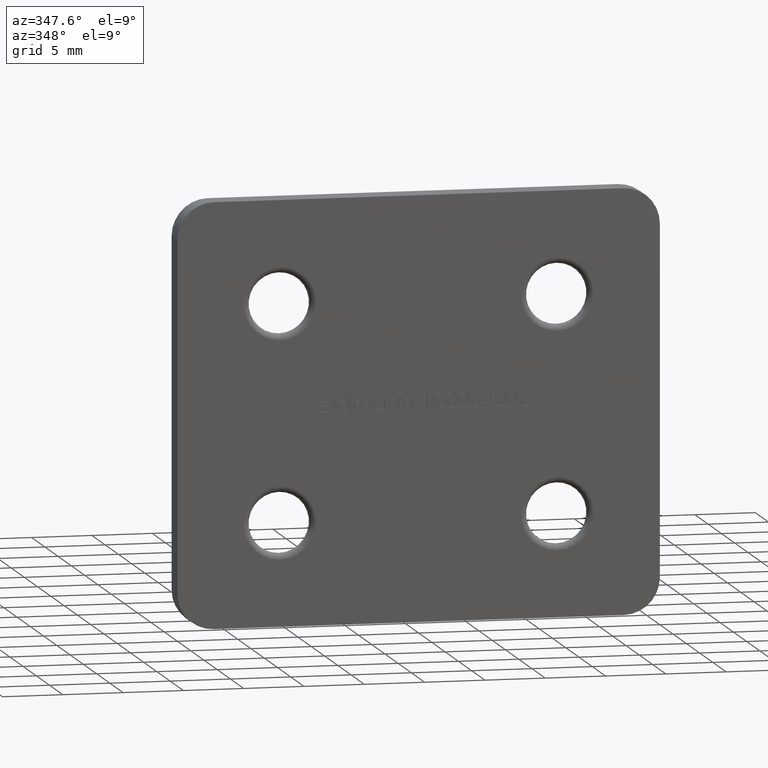
[diagram: clean part render]
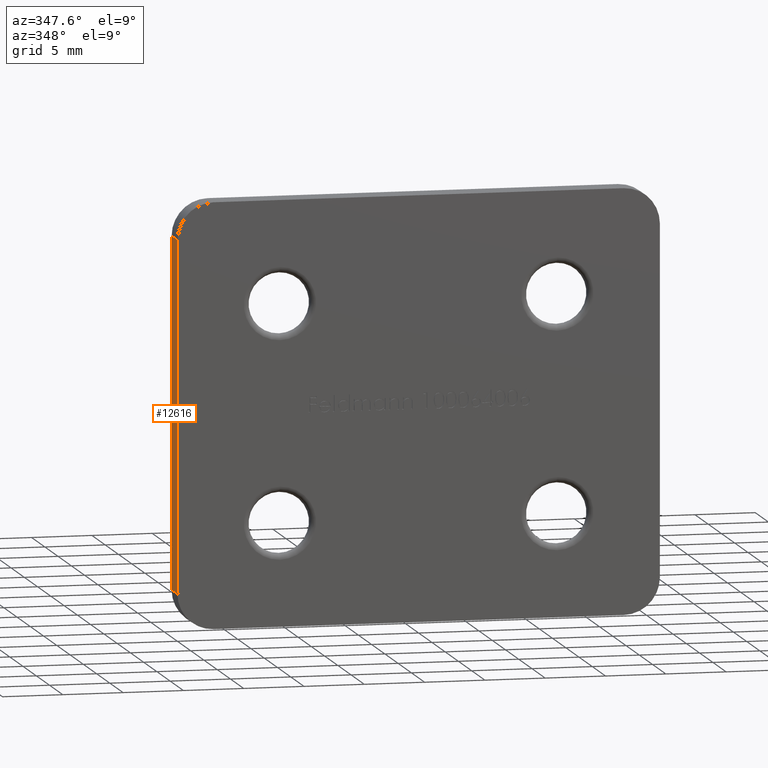
[diagram: same view with one face highlighted and labeled with its STEP entity id]
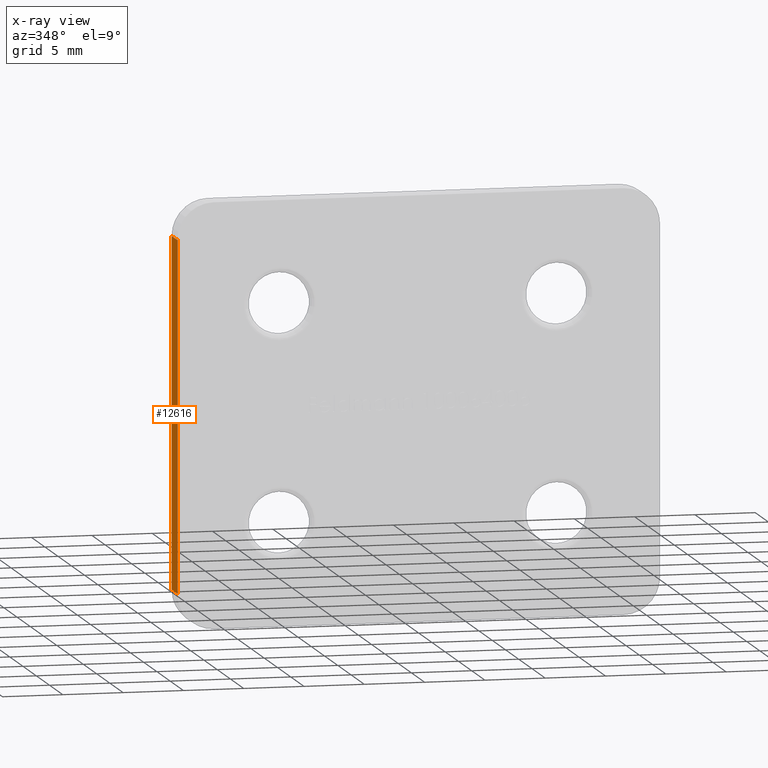
[diagram: x-ray of the same camera — body ghosted, the highlighted face saturated]
A machine part, auxiliary view. The second image highlights one B-rep face of the part: STEP entity #12616.
The next image is the same camera in x-ray: the body ghosted, the highlighted face saturated — about 0% of this face is hidden behind the body in this view.
In plain terms, the highlighted planar face has unit normal (1, 0, -0).
Its self-contained STEP definition (entity closure, byte-faithful):
#421 = CARTESIAN_POINT ( 'NONE',  ( -19.99999999999999600, 2.200000000000000200, 14.50000000000000200 ) ) ;
#939 = VERTEX_POINT ( 'NONE', #14174 ) ;
#1153 = ORIENTED_EDGE ( 'NONE', *, *, #1220, .F. ) ;
#1220 = EDGE_CURVE ( 'NONE', #10465, #3472, #7982, .T. ) ;
#1322 = FACE_OUTER_BOUND ( 'NONE', #3536, .T. ) ;
#2513 = CARTESIAN_POINT ( 'NONE',  ( -20.00000000000000400, 0.0000000000000000000, -14.49999999999999800 ) ) ;
#2999 = LINE ( 'NONE', #11548, #11388 ) ;
#3472 = VERTEX_POINT ( 'NONE', #421 ) ;
#3536 = EDGE_LOOP ( 'NONE', ( #1153, #3632, #5813, #4692 ) ) ;
#3632 = ORIENTED_EDGE ( 'NONE', *, *, #3782, .T. ) ;
#3782 = EDGE_CURVE ( 'NONE', #10465, #8673, #2999, .T. ) ;
#4692 = ORIENTED_EDGE ( 'NONE', *, *, #8469, .T. ) ;
#4896 = CARTESIAN_POINT ( 'NONE',  ( -20.00000000000000400, 0.0000000000000000000, -17.49999999999999600 ) ) ;
#5019 = VECTOR ( 'NONE', #11618, 1000.000000000000000 ) ;
#5180 = PLANE ( 'NONE',  #9887 ) ;
#5813 = ORIENTED_EDGE ( 'NONE', *, *, #12833, .T. ) ;
#5917 = DIRECTION ( 'NONE',  ( 1.982541115402065100E-016, 0.0000000000000000000, 1.000000000000000000 ) ) ;
#6573 = LINE ( 'NONE', #4896, #8158 ) ;
#7453 = CARTESIAN_POINT ( 'NONE',  ( -19.99999999999999600, 2.200000000000000200, 14.50000000000000200 ) ) ;
#7982 = LINE ( 'NONE', #13789, #5019 ) ;
#8158 = VECTOR ( 'NONE', #5917, 1000.000000000000000 ) ;
#8469 = EDGE_CURVE ( 'NONE', #939, #3472, #10306, .T. ) ;
#8673 = VERTEX_POINT ( 'NONE', #2513 ) ;
#8694 = CARTESIAN_POINT ( 'NONE',  ( -20.00000000000000400, 2.200000000000000200, -14.49999999999999800 ) ) ;
#9680 = CARTESIAN_POINT ( 'NONE',  ( -20.00000000000000400, 2.200000000000000200, -17.49999999999999600 ) ) ;
#9837 = DIRECTION ( 'NONE',  ( -1.982541115402065100E-016, 0.0000000000000000000, -1.000000000000000000 ) ) ;
#9843 = DIRECTION ( 'NONE',  ( -0.0000000000000000000, 1.000000000000000000, -0.0000000000000000000 ) ) ;
#9887 = AXIS2_PLACEMENT_3D ( 'NONE', #9680, #10802, #9837 ) ;
#10306 = LINE ( 'NONE', #7453, #14016 ) ;
#10465 = VERTEX_POINT ( 'NONE', #8694 ) ;
#10802 = DIRECTION ( 'NONE',  ( 1.000000000000000000, 0.0000000000000000000, -1.982541115402065100E-016 ) ) ;
#11388 = VECTOR ( 'NONE', #11591, 1000.000000000000000 ) ;
#11548 = CARTESIAN_POINT ( 'NONE',  ( -20.00000000000000400, 2.200000000000000200, -14.49999999999999800 ) ) ;
#11591 = DIRECTION ( 'NONE',  ( 0.0000000000000000000, -1.000000000000000000, 0.0000000000000000000 ) ) ;
#11618 = DIRECTION ( 'NONE',  ( 1.982541115402065100E-016, 0.0000000000000000000, 1.000000000000000000 ) ) ;
#12616 = ADVANCED_FACE ( 'NONE', ( #1322 ), #5180, .F. ) ;
#12833 = EDGE_CURVE ( 'NONE', #8673, #939, #6573, .T. ) ;
#13789 = CARTESIAN_POINT ( 'NONE',  ( -20.00000000000000400, 2.200000000000000200, -17.49999999999999600 ) ) ;
#14016 = VECTOR ( 'NONE', #9843, 1000.000000000000000 ) ;
#14174 = CARTESIAN_POINT ( 'NONE',  ( -19.99999999999999600, 0.0000000000000000000, 14.50000000000000200 ) ) ;